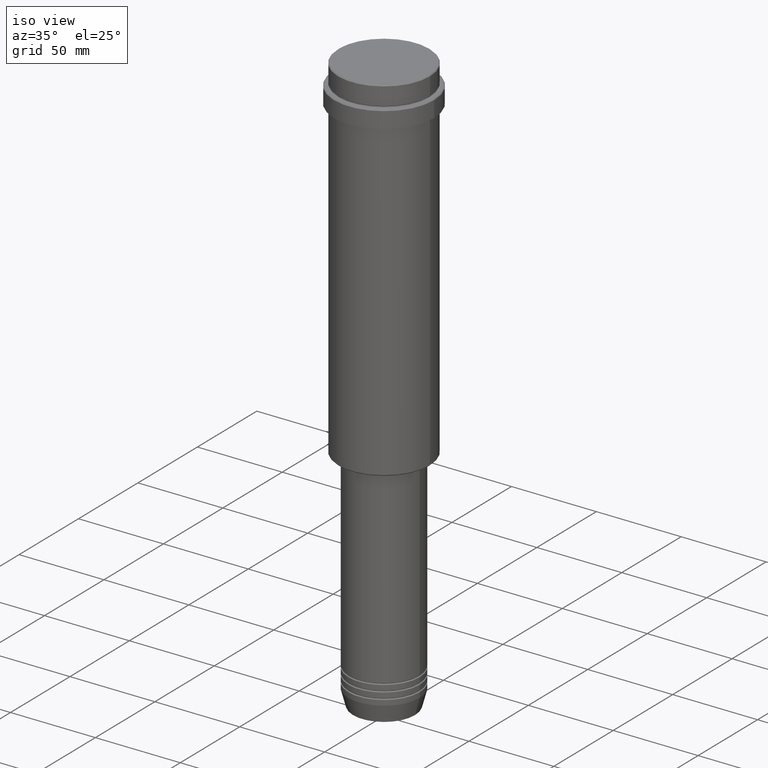
[diagram: clean part render]
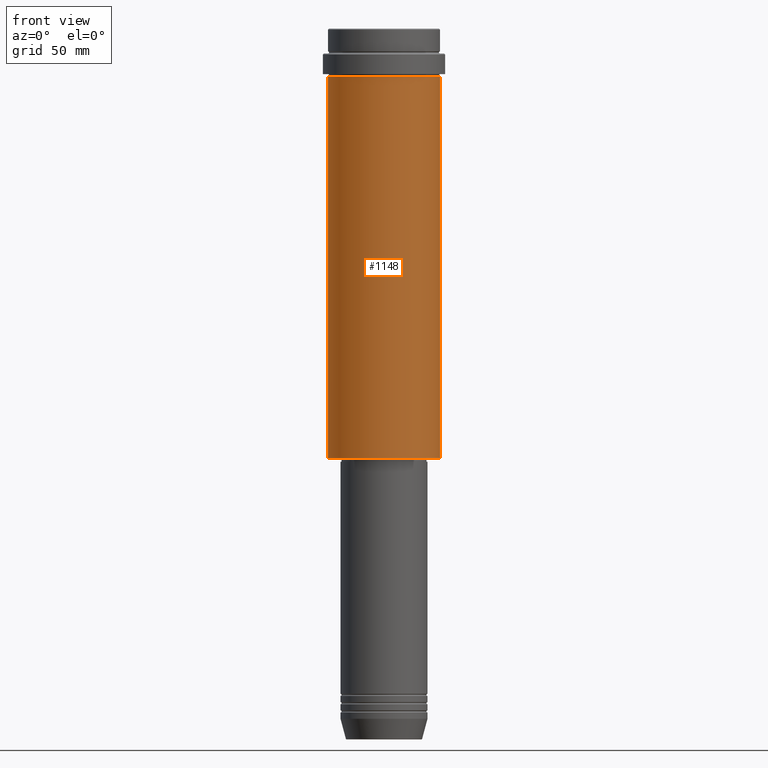
[diagram: tour spotlight — one face highlighted and labeled with its STEP entity id]
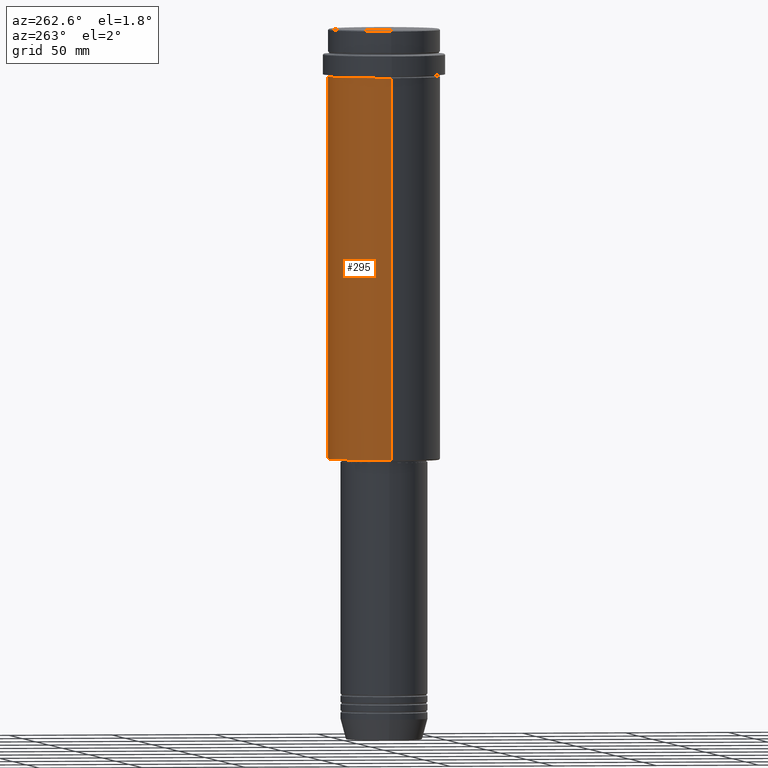
[diagram: tour spotlight — one face highlighted and labeled with its STEP entity id]
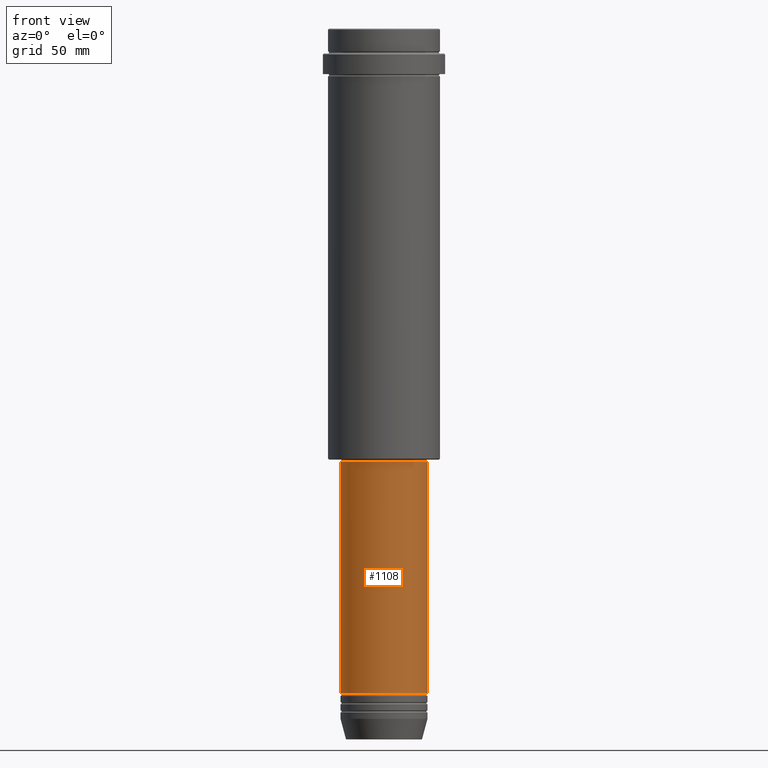
[diagram: tour spotlight — one face highlighted and labeled with its STEP entity id]
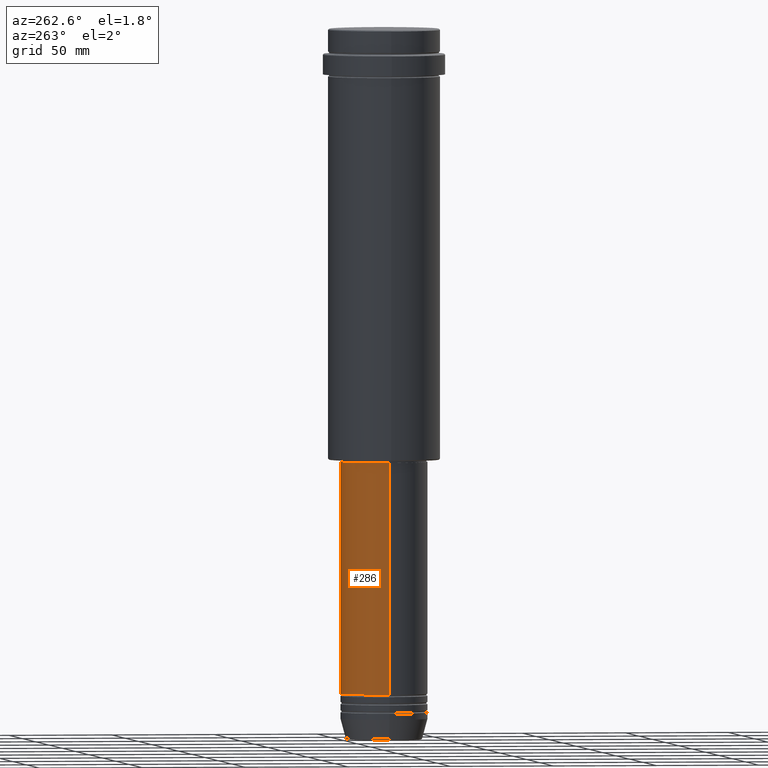
[diagram: tour spotlight — one face highlighted and labeled with its STEP entity id]
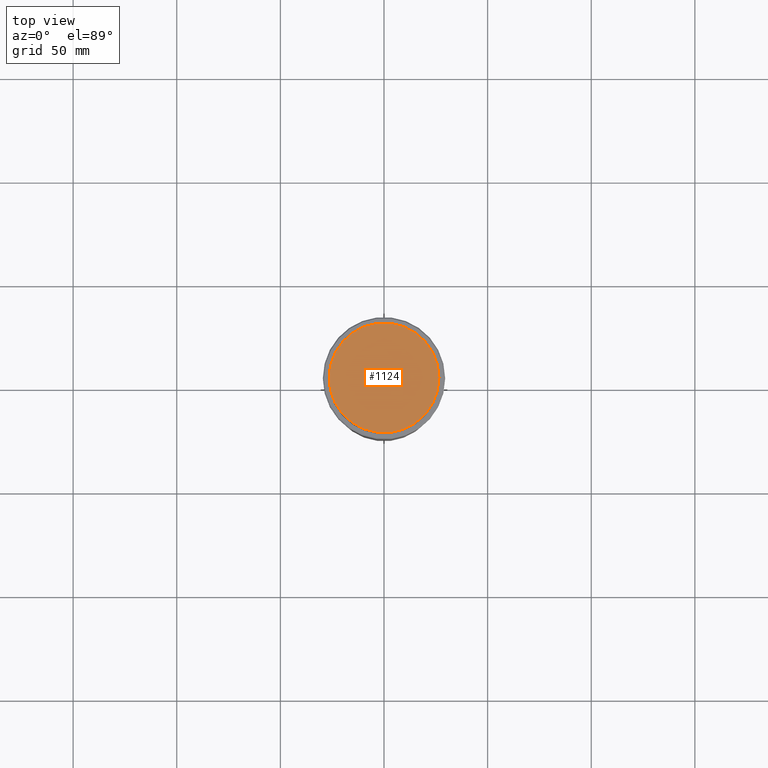
[diagram: tour spotlight — one face highlighted and labeled with its STEP entity id]
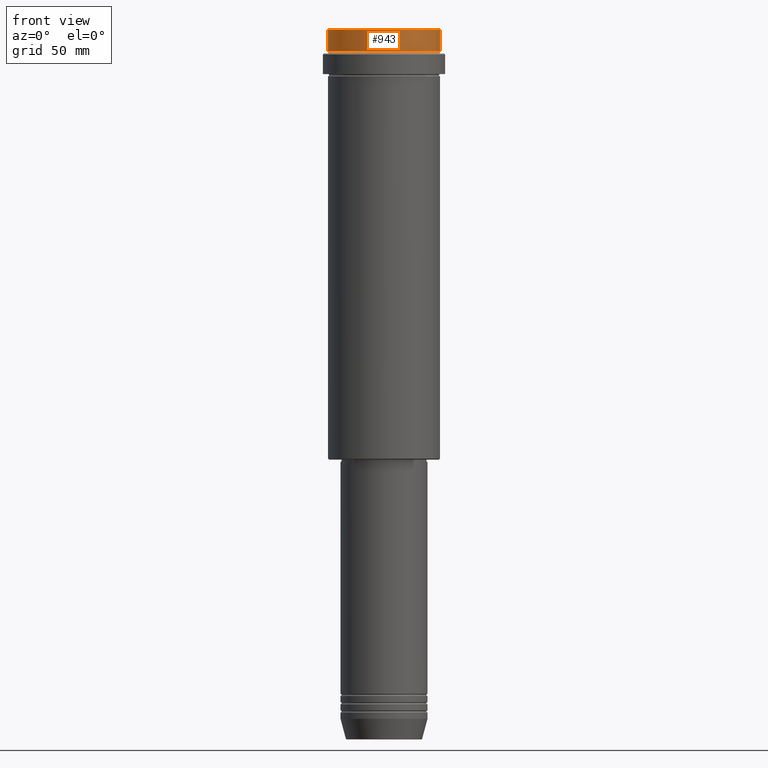
[diagram: tour spotlight — one face highlighted and labeled with its STEP entity id]
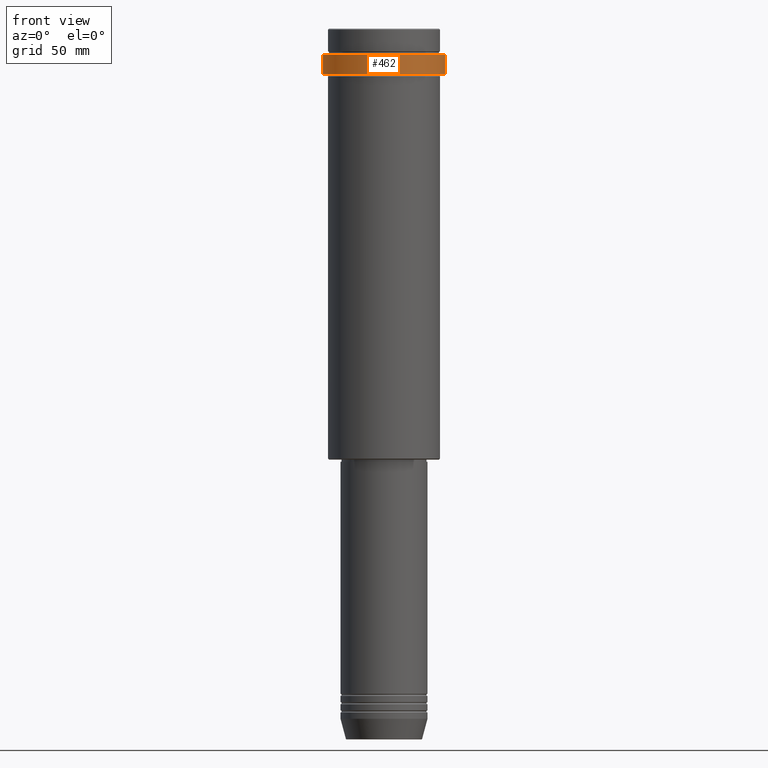
[diagram: tour spotlight — one face highlighted and labeled with its STEP entity id]
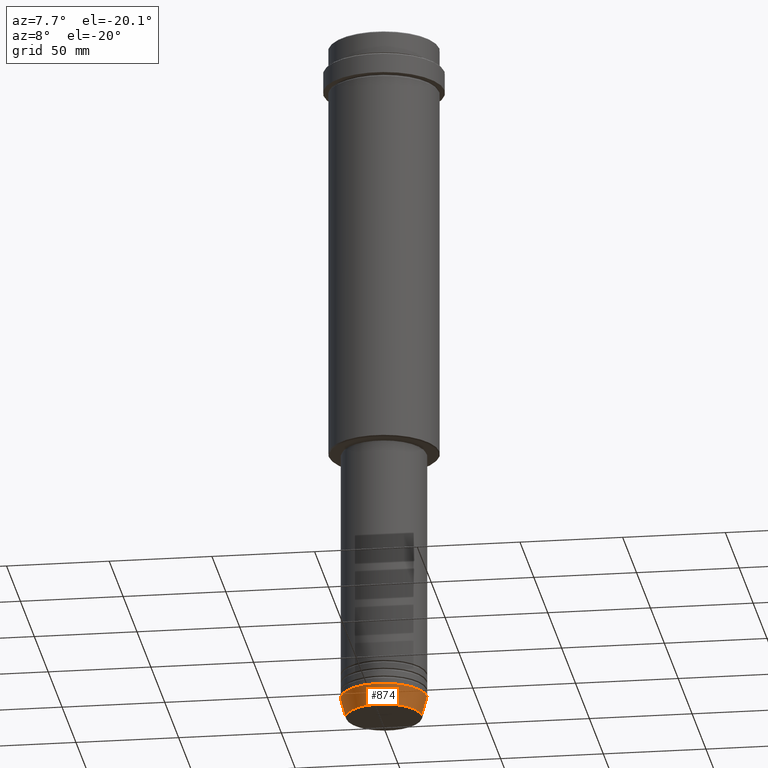
[diagram: tour spotlight — one face highlighted and labeled with its STEP entity id]
A machine part: a face-by-face anatomy tour. The part has 52 B-rep faces; the first image is the clean iso view, then the 8 largest visible faces are spotlighted one at a time (largest first), each with its STEP entity span.

Face 1 — front view, entity #1148. In plain terms, the highlighted cylindrical surface (partial cylindrical patch) has radius 27 mm, axis along (-0, -0, 1).
Definition (entity closure, byte-faithful):
#1 = AXIS2_PLACEMENT_3D ( 'NONE', #787, #1128, #1230 ) ;
#35 = CARTESIAN_POINT ( 'NONE',  ( 27.00000000000000355, 0.000000000000000000, -207.5000000000000284 ) ) ;
#70 = EDGE_CURVE ( 'NONE', #728, #665, #734, .T. ) ;
#184 = CARTESIAN_POINT ( 'NONE',  ( -27.00000000000000355, 3.306546357697854128E-15, 0.000000000000000000 ) ) ;
#257 = ORIENTED_EDGE ( 'NONE', *, *, #926, .F. ) ;
#304 = VERTEX_POINT ( 'NONE', #35 ) ;
#320 = CYLINDRICAL_SURFACE ( 'NONE', #847, 27.00000000000000355 ) ;
#356 = EDGE_CURVE ( 'NONE', #304, #905, #1149, .T. ) ;
#428 = ORIENTED_EDGE ( 'NONE', *, *, #70, .F. ) ;
#473 = ORIENTED_EDGE ( 'NONE', *, *, #356, .T. ) ;
#587 = DIRECTION ( 'NONE',  ( -0.000000000000000000, -0.000000000000000000, 1.000000000000000000 ) ) ;
#640 = DIRECTION ( 'NONE',  ( 1.000000000000000000, 0.000000000000000000, 0.000000000000000000 ) ) ;
#665 = VERTEX_POINT ( 'NONE', #878 ) ;
#728 = VERTEX_POINT ( 'NONE', #1090 ) ;
#734 = LINE ( 'NONE', #184, #956 ) ;
#745 = CARTESIAN_POINT ( 'NONE',  ( 0.000000000000000000, 0.000000000000000000, 0.000000000000000000 ) ) ;
#787 = CARTESIAN_POINT ( 'NONE',  ( 0.000000000000000000, 0.000000000000000000, -207.5000000000000284 ) ) ;
#810 = CARTESIAN_POINT ( 'NONE',  ( 27.00000000000000355, 0.000000000000000000, -23.00000000000001421 ) ) ;
#847 = AXIS2_PLACEMENT_3D ( 'NONE', #745, #1190, #640 ) ;
#856 = VECTOR ( 'NONE', #587, 1000.000000000000000 ) ;
#878 = CARTESIAN_POINT ( 'NONE',  ( -27.00000000000000355, 3.306546357697854128E-15, -23.00000000000001421 ) ) ;
#905 = VERTEX_POINT ( 'NONE', #810 ) ;
#926 = EDGE_CURVE ( 'NONE', #665, #905, #1315, .T. ) ;
#956 = VECTOR ( 'NONE', #1183, 1000.000000000000000 ) ;
#964 = EDGE_LOOP ( 'NONE', ( #428, #1377, #473, #257 ) ) ;
#1071 = CIRCLE ( 'NONE', #1, 27.00000000000000355 ) ;
#1090 = CARTESIAN_POINT ( 'NONE',  ( -27.00000000000000355, 3.306546357697854128E-15, -207.5000000000000284 ) ) ;
#1128 = DIRECTION ( 'NONE',  ( -0.000000000000000000, -0.000000000000000000, 1.000000000000000000 ) ) ;
#1143 = CARTESIAN_POINT ( 'NONE',  ( 27.00000000000000355, 0.000000000000000000, 0.000000000000000000 ) ) ;
#1148 = ADVANCED_FACE ( 'NONE', ( #1410 ), #320, .T. ) ;
#1149 = LINE ( 'NONE', #1143, #856 ) ;
#1159 = DIRECTION ( 'NONE',  ( -0.000000000000000000, -0.000000000000000000, 1.000000000000000000 ) ) ;
#1183 = DIRECTION ( 'NONE',  ( -0.000000000000000000, -0.000000000000000000, 1.000000000000000000 ) ) ;
#1190 = DIRECTION ( 'NONE',  ( -0.000000000000000000, -0.000000000000000000, 1.000000000000000000 ) ) ;
#1208 = AXIS2_PLACEMENT_3D ( 'NONE', #1253, #1159, #1235 ) ;
#1213 = EDGE_CURVE ( 'NONE', #728, #304, #1071, .T. ) ;
#1230 = DIRECTION ( 'NONE',  ( -1.000000000000000000, 0.000000000000000000, 0.000000000000000000 ) ) ;
#1235 = DIRECTION ( 'NONE',  ( 1.000000000000000000, 0.000000000000000000, 0.000000000000000000 ) ) ;
#1253 = CARTESIAN_POINT ( 'NONE',  ( 0.000000000000000000, 0.000000000000000000, -23.00000000000001421 ) ) ;
#1315 = CIRCLE ( 'NONE', #1208, 27.00000000000000355 ) ;
#1377 = ORIENTED_EDGE ( 'NONE', *, *, #1213, .T. ) ;
#1410 = FACE_OUTER_BOUND ( 'NONE', #964, .T. ) ;

Face 2 — auxiliary view, entity #295. In plain terms, the highlighted cylindrical surface (partial cylindrical patch) has radius 27 mm, axis along (-0, -0, 1).
Definition (entity closure, byte-faithful):
#35 = CARTESIAN_POINT ( 'NONE',  ( 27.00000000000000355, 0.000000000000000000, -207.5000000000000284 ) ) ;
#66 = EDGE_LOOP ( 'NONE', ( #744, #1365, #524, #1352 ) ) ;
#70 = EDGE_CURVE ( 'NONE', #728, #665, #734, .T. ) ;
#184 = CARTESIAN_POINT ( 'NONE',  ( -27.00000000000000355, 3.306546357697854128E-15, 0.000000000000000000 ) ) ;
#271 = CARTESIAN_POINT ( 'NONE',  ( 0.000000000000000000, 0.000000000000000000, 0.000000000000000000 ) ) ;
#294 = CARTESIAN_POINT ( 'NONE',  ( 0.000000000000000000, 0.000000000000000000, -207.5000000000000284 ) ) ;
#295 = ADVANCED_FACE ( 'NONE', ( #566 ), #1364, .T. ) ;
#298 = AXIS2_PLACEMENT_3D ( 'NONE', #294, #933, #839 ) ;
#304 = VERTEX_POINT ( 'NONE', #35 ) ;
#317 = AXIS2_PLACEMENT_3D ( 'NONE', #1278, #623, #1072 ) ;
#356 = EDGE_CURVE ( 'NONE', #304, #905, #1149, .T. ) ;
#457 = EDGE_CURVE ( 'NONE', #905, #665, #1409, .T. ) ;
#524 = ORIENTED_EDGE ( 'NONE', *, *, #457, .F. ) ;
#566 = FACE_OUTER_BOUND ( 'NONE', #66, .T. ) ;
#587 = DIRECTION ( 'NONE',  ( -0.000000000000000000, -0.000000000000000000, 1.000000000000000000 ) ) ;
#623 = DIRECTION ( 'NONE',  ( -0.000000000000000000, -0.000000000000000000, 1.000000000000000000 ) ) ;
#665 = VERTEX_POINT ( 'NONE', #878 ) ;
#728 = VERTEX_POINT ( 'NONE', #1090 ) ;
#734 = LINE ( 'NONE', #184, #956 ) ;
#744 = ORIENTED_EDGE ( 'NONE', *, *, #1369, .T. ) ;
#799 = CIRCLE ( 'NONE', #298, 27.00000000000000355 ) ;
#810 = CARTESIAN_POINT ( 'NONE',  ( 27.00000000000000355, 0.000000000000000000, -23.00000000000001421 ) ) ;
#839 = DIRECTION ( 'NONE',  ( -1.000000000000000000, 0.000000000000000000, 0.000000000000000000 ) ) ;
#856 = VECTOR ( 'NONE', #587, 1000.000000000000000 ) ;
#878 = CARTESIAN_POINT ( 'NONE',  ( -27.00000000000000355, 3.306546357697854128E-15, -23.00000000000001421 ) ) ;
#887 = AXIS2_PLACEMENT_3D ( 'NONE', #271, #900, #1220 ) ;
#900 = DIRECTION ( 'NONE',  ( -0.000000000000000000, -0.000000000000000000, 1.000000000000000000 ) ) ;
#905 = VERTEX_POINT ( 'NONE', #810 ) ;
#933 = DIRECTION ( 'NONE',  ( -0.000000000000000000, -0.000000000000000000, 1.000000000000000000 ) ) ;
#956 = VECTOR ( 'NONE', #1183, 1000.000000000000000 ) ;
#1072 = DIRECTION ( 'NONE',  ( 1.000000000000000000, 0.000000000000000000, 0.000000000000000000 ) ) ;
#1090 = CARTESIAN_POINT ( 'NONE',  ( -27.00000000000000355, 3.306546357697854128E-15, -207.5000000000000284 ) ) ;
#1143 = CARTESIAN_POINT ( 'NONE',  ( 27.00000000000000355, 0.000000000000000000, 0.000000000000000000 ) ) ;
#1149 = LINE ( 'NONE', #1143, #856 ) ;
#1183 = DIRECTION ( 'NONE',  ( -0.000000000000000000, -0.000000000000000000, 1.000000000000000000 ) ) ;
#1220 = DIRECTION ( 'NONE',  ( 1.000000000000000000, 0.000000000000000000, 0.000000000000000000 ) ) ;
#1278 = CARTESIAN_POINT ( 'NONE',  ( 0.000000000000000000, 0.000000000000000000, -23.00000000000001421 ) ) ;
#1352 = ORIENTED_EDGE ( 'NONE', *, *, #356, .F. ) ;
#1364 = CYLINDRICAL_SURFACE ( 'NONE', #887, 27.00000000000000355 ) ;
#1365 = ORIENTED_EDGE ( 'NONE', *, *, #70, .T. ) ;
#1369 = EDGE_CURVE ( 'NONE', #304, #728, #799, .T. ) ;
#1409 = CIRCLE ( 'NONE', #317, 27.00000000000000355 ) ;

Face 3 — front view, entity #1108. In plain terms, the highlighted cylindrical surface (partial cylindrical patch) has radius 21 mm, axis along (-0, -0, 1).
Definition (entity closure, byte-faithful):
#18 = DIRECTION ( 'NONE',  ( -0.000000000000000000, -0.000000000000000000, 1.000000000000000000 ) ) ;
#63 = VERTEX_POINT ( 'NONE', #1172 ) ;
#76 = CARTESIAN_POINT ( 'NONE',  ( 21.00000000000000000, 0.000000000000000000, -320.9999999999998863 ) ) ;
#101 = ORIENTED_EDGE ( 'NONE', *, *, #1004, .F. ) ;
#115 = CARTESIAN_POINT ( 'NONE',  ( 0.000000000000000000, 0.000000000000000000, 0.000000000000000000 ) ) ;
#213 = EDGE_CURVE ( 'NONE', #909, #1414, #338, .T. ) ;
#233 = FACE_OUTER_BOUND ( 'NONE', #446, .T. ) ;
#239 = CARTESIAN_POINT ( 'NONE',  ( 0.000000000000000000, 0.000000000000000000, -208.9999999999999432 ) ) ;
#338 = CIRCLE ( 'NONE', #1244, 21.00000000000000000 ) ;
#348 = EDGE_CURVE ( 'NONE', #1373, #63, #1337, .T. ) ;
#381 = CARTESIAN_POINT ( 'NONE',  ( -21.00000000000000000, 2.571758278209441661E-15, -208.9999999999999432 ) ) ;
#436 = VECTOR ( 'NONE', #586, 1000.000000000000000 ) ;
#446 = EDGE_LOOP ( 'NONE', ( #101, #689, #1324, #488 ) ) ;
#464 = DIRECTION ( 'NONE',  ( 1.000000000000000000, 0.000000000000000000, 0.000000000000000000 ) ) ;
#488 = ORIENTED_EDGE ( 'NONE', *, *, #348, .F. ) ;
#498 = AXIS2_PLACEMENT_3D ( 'NONE', #239, #18, #464 ) ;
#586 = DIRECTION ( 'NONE',  ( -0.000000000000000000, -0.000000000000000000, 1.000000000000000000 ) ) ;
#590 = CARTESIAN_POINT ( 'NONE',  ( -21.00000000000000000, 2.571758278209441661E-15, -320.9999999999998863 ) ) ;
#645 = DIRECTION ( 'NONE',  ( -0.000000000000000000, -0.000000000000000000, 1.000000000000000000 ) ) ;
#687 = LINE ( 'NONE', #1349, #436 ) ;
#689 = ORIENTED_EDGE ( 'NONE', *, *, #213, .T. ) ;
#691 = DIRECTION ( 'NONE',  ( -0.000000000000000000, -0.000000000000000000, 1.000000000000000000 ) ) ;
#699 = CARTESIAN_POINT ( 'NONE',  ( -21.00000000000000000, 2.571758278209441661E-15, 0.000000000000000000 ) ) ;
#755 = DIRECTION ( 'NONE',  ( -0.000000000000000000, -0.000000000000000000, 1.000000000000000000 ) ) ;
#827 = EDGE_CURVE ( 'NONE', #1414, #63, #687, .T. ) ;
#865 = CARTESIAN_POINT ( 'NONE',  ( 0.000000000000000000, 0.000000000000000000, -320.9999999999998863 ) ) ;
#890 = VECTOR ( 'NONE', #691, 1000.000000000000000 ) ;
#909 = VERTEX_POINT ( 'NONE', #590 ) ;
#924 = LINE ( 'NONE', #699, #890 ) ;
#1002 = DIRECTION ( 'NONE',  ( 1.000000000000000000, 0.000000000000000000, 0.000000000000000000 ) ) ;
#1004 = EDGE_CURVE ( 'NONE', #909, #1373, #924, .T. ) ;
#1108 = ADVANCED_FACE ( 'NONE', ( #233 ), #1109, .T. ) ;
#1109 = CYLINDRICAL_SURFACE ( 'NONE', #1179, 21.00000000000000000 ) ;
#1172 = CARTESIAN_POINT ( 'NONE',  ( 21.00000000000000000, 0.000000000000000000, -208.9999999999999432 ) ) ;
#1179 = AXIS2_PLACEMENT_3D ( 'NONE', #115, #645, #1002 ) ;
#1201 = DIRECTION ( 'NONE',  ( 1.000000000000000000, 0.000000000000000000, 0.000000000000000000 ) ) ;
#1244 = AXIS2_PLACEMENT_3D ( 'NONE', #865, #755, #1201 ) ;
#1324 = ORIENTED_EDGE ( 'NONE', *, *, #827, .T. ) ;
#1337 = CIRCLE ( 'NONE', #498, 21.00000000000000000 ) ;
#1349 = CARTESIAN_POINT ( 'NONE',  ( 21.00000000000000000, 0.000000000000000000, 0.000000000000000000 ) ) ;
#1373 = VERTEX_POINT ( 'NONE', #381 ) ;
#1414 = VERTEX_POINT ( 'NONE', #76 ) ;

Face 4 — auxiliary view, entity #286. In plain terms, the highlighted cylindrical surface (partial cylindrical patch) has radius 21 mm, axis along (-0, -0, 1).
Definition (entity closure, byte-faithful):
#63 = VERTEX_POINT ( 'NONE', #1172 ) ;
#76 = CARTESIAN_POINT ( 'NONE',  ( 21.00000000000000000, 0.000000000000000000, -320.9999999999998863 ) ) ;
#127 = DIRECTION ( 'NONE',  ( 1.000000000000000000, 0.000000000000000000, 0.000000000000000000 ) ) ;
#141 = CYLINDRICAL_SURFACE ( 'NONE', #383, 21.00000000000000000 ) ;
#269 = AXIS2_PLACEMENT_3D ( 'NONE', #1200, #576, #1355 ) ;
#286 = ADVANCED_FACE ( 'NONE', ( #669 ), #141, .T. ) ;
#319 = ORIENTED_EDGE ( 'NONE', *, *, #827, .F. ) ;
#370 = DIRECTION ( 'NONE',  ( -0.000000000000000000, -0.000000000000000000, 1.000000000000000000 ) ) ;
#381 = CARTESIAN_POINT ( 'NONE',  ( -21.00000000000000000, 2.571758278209441661E-15, -208.9999999999999432 ) ) ;
#383 = AXIS2_PLACEMENT_3D ( 'NONE', #797, #370, #127 ) ;
#436 = VECTOR ( 'NONE', #586, 1000.000000000000000 ) ;
#507 = AXIS2_PLACEMENT_3D ( 'NONE', #1178, #957, #707 ) ;
#545 = EDGE_LOOP ( 'NONE', ( #1287, #1154, #842, #319 ) ) ;
#576 = DIRECTION ( 'NONE',  ( -0.000000000000000000, -0.000000000000000000, 1.000000000000000000 ) ) ;
#586 = DIRECTION ( 'NONE',  ( -0.000000000000000000, -0.000000000000000000, 1.000000000000000000 ) ) ;
#590 = CARTESIAN_POINT ( 'NONE',  ( -21.00000000000000000, 2.571758278209441661E-15, -320.9999999999998863 ) ) ;
#669 = FACE_OUTER_BOUND ( 'NONE', #545, .T. ) ;
#687 = LINE ( 'NONE', #1349, #436 ) ;
#691 = DIRECTION ( 'NONE',  ( -0.000000000000000000, -0.000000000000000000, 1.000000000000000000 ) ) ;
#699 = CARTESIAN_POINT ( 'NONE',  ( -21.00000000000000000, 2.571758278209441661E-15, 0.000000000000000000 ) ) ;
#707 = DIRECTION ( 'NONE',  ( 1.000000000000000000, 0.000000000000000000, 0.000000000000000000 ) ) ;
#749 = EDGE_CURVE ( 'NONE', #63, #1373, #1166, .T. ) ;
#797 = CARTESIAN_POINT ( 'NONE',  ( 0.000000000000000000, 0.000000000000000000, 0.000000000000000000 ) ) ;
#827 = EDGE_CURVE ( 'NONE', #1414, #63, #687, .T. ) ;
#842 = ORIENTED_EDGE ( 'NONE', *, *, #749, .F. ) ;
#890 = VECTOR ( 'NONE', #691, 1000.000000000000000 ) ;
#909 = VERTEX_POINT ( 'NONE', #590 ) ;
#924 = LINE ( 'NONE', #699, #890 ) ;
#957 = DIRECTION ( 'NONE',  ( -0.000000000000000000, -0.000000000000000000, 1.000000000000000000 ) ) ;
#1004 = EDGE_CURVE ( 'NONE', #909, #1373, #924, .T. ) ;
#1039 = CIRCLE ( 'NONE', #507, 21.00000000000000000 ) ;
#1154 = ORIENTED_EDGE ( 'NONE', *, *, #1004, .T. ) ;
#1166 = CIRCLE ( 'NONE', #269, 21.00000000000000000 ) ;
#1172 = CARTESIAN_POINT ( 'NONE',  ( 21.00000000000000000, 0.000000000000000000, -208.9999999999999432 ) ) ;
#1178 = CARTESIAN_POINT ( 'NONE',  ( 0.000000000000000000, 0.000000000000000000, -320.9999999999998863 ) ) ;
#1200 = CARTESIAN_POINT ( 'NONE',  ( 0.000000000000000000, 0.000000000000000000, -208.9999999999999432 ) ) ;
#1287 = ORIENTED_EDGE ( 'NONE', *, *, #1388, .T. ) ;
#1349 = CARTESIAN_POINT ( 'NONE',  ( 21.00000000000000000, 0.000000000000000000, 0.000000000000000000 ) ) ;
#1355 = DIRECTION ( 'NONE',  ( 1.000000000000000000, 0.000000000000000000, 0.000000000000000000 ) ) ;
#1373 = VERTEX_POINT ( 'NONE', #381 ) ;
#1388 = EDGE_CURVE ( 'NONE', #1414, #909, #1039, .T. ) ;
#1414 = VERTEX_POINT ( 'NONE', #76 ) ;

Face 5 — top view, entity #1124. In plain terms, the highlighted planar face has unit normal (0, -0, 1).
Definition (entity closure, byte-faithful):
#74 = AXIS2_PLACEMENT_3D ( 'NONE', #109, #1416, #1281 ) ;
#96 = CARTESIAN_POINT ( 'NONE',  ( 0.000000000000000000, 0.000000000000000000, 0.000000000000000000 ) ) ;
#109 = CARTESIAN_POINT ( 'NONE',  ( 0.000000000000000000, 0.000000000000000000, 0.000000000000000000 ) ) ;
#124 = AXIS2_PLACEMENT_3D ( 'NONE', #96, #869, #1297 ) ;
#201 = PLANE ( 'NONE',  #74 ) ;
#226 = DIRECTION ( 'NONE',  ( 1.000000000000000000, 0.000000000000000000, 0.000000000000000000 ) ) ;
#423 = AXIS2_PLACEMENT_3D ( 'NONE', #1206, #1096, #226 ) ;
#550 = ORIENTED_EDGE ( 'NONE', *, *, #1140, .T. ) ;
#652 = EDGE_LOOP ( 'NONE', ( #1144, #550 ) ) ;
#725 = VERTEX_POINT ( 'NONE', #977 ) ;
#731 = EDGE_CURVE ( 'NONE', #725, #1164, #1289, .T. ) ;
#805 = CARTESIAN_POINT ( 'NONE',  ( 26.50000000000007816, 3.275930187719175074E-15, 0.000000000000000000 ) ) ;
#848 = FACE_OUTER_BOUND ( 'NONE', #652, .T. ) ;
#869 = DIRECTION ( 'NONE',  ( -0.000000000000000000, -0.000000000000000000, 1.000000000000000000 ) ) ;
#977 = CARTESIAN_POINT ( 'NONE',  ( -26.50000000000007816, 0.000000000000000000, 0.000000000000000000 ) ) ;
#1096 = DIRECTION ( 'NONE',  ( -0.000000000000000000, -0.000000000000000000, 1.000000000000000000 ) ) ;
#1124 = ADVANCED_FACE ( 'NONE', ( #848 ), #201, .T. ) ;
#1140 = EDGE_CURVE ( 'NONE', #1164, #725, #1158, .T. ) ;
#1144 = ORIENTED_EDGE ( 'NONE', *, *, #731, .T. ) ;
#1158 = CIRCLE ( 'NONE', #423, 26.50000000000007816 ) ;
#1164 = VERTEX_POINT ( 'NONE', #805 ) ;
#1206 = CARTESIAN_POINT ( 'NONE',  ( 0.000000000000000000, 0.000000000000000000, 0.000000000000000000 ) ) ;
#1281 = DIRECTION ( 'NONE',  ( 1.000000000000000000, 0.000000000000000000, 0.000000000000000000 ) ) ;
#1289 = CIRCLE ( 'NONE', #124, 26.50000000000007816 ) ;
#1297 = DIRECTION ( 'NONE',  ( 1.000000000000000000, 0.000000000000000000, 0.000000000000000000 ) ) ;
#1416 = DIRECTION ( 'NONE',  ( 0.000000000000000000, -0.000000000000000000, 1.000000000000000000 ) ) ;

Face 6 — front view, entity #943. In plain terms, the highlighted cylindrical surface (partial cylindrical patch) has radius 27 mm, axis along (-0, -0, 1).
Definition (entity closure, byte-faithful):
#8 = CARTESIAN_POINT ( 'NONE',  ( 27.00000000000000355, 0.000000000000000000, -0.4999999999999241163 ) ) ;
#28 = CARTESIAN_POINT ( 'NONE',  ( -27.00000000000000355, 3.306546357697854128E-15, -0.4999999999999241163 ) ) ;
#102 = VERTEX_POINT ( 'NONE', #1374 ) ;
#108 = ORIENTED_EDGE ( 'NONE', *, *, #1138, .T. ) ;
#112 = CARTESIAN_POINT ( 'NONE',  ( -27.00000000000000355, 3.306546357697854128E-15, 0.000000000000000000 ) ) ;
#125 = EDGE_CURVE ( 'NONE', #903, #1115, #895, .T. ) ;
#140 = EDGE_CURVE ( 'NONE', #102, #938, #1323, .T. ) ;
#143 = CARTESIAN_POINT ( 'NONE',  ( 0.000000000000000000, 0.000000000000000000, -11.00000000000000178 ) ) ;
#258 = CYLINDRICAL_SURFACE ( 'NONE', #585, 27.00000000000000355 ) ;
#336 = VECTOR ( 'NONE', #1412, 1000.000000000000000 ) ;
#350 = DIRECTION ( 'NONE',  ( -0.000000000000000000, -0.000000000000000000, 1.000000000000000000 ) ) ;
#373 = DIRECTION ( 'NONE',  ( 1.000000000000000000, 0.000000000000000000, 0.000000000000000000 ) ) ;
#377 = ORIENTED_EDGE ( 'NONE', *, *, #140, .F. ) ;
#429 = DIRECTION ( 'NONE',  ( 0.000000000000000000, 0.000000000000000000, -1.000000000000000000 ) ) ;
#448 = CARTESIAN_POINT ( 'NONE',  ( 0.000000000000000000, 0.000000000000000000, -0.4999999999999241163 ) ) ;
#452 = VECTOR ( 'NONE', #350, 1000.000000000000000 ) ;
#585 = AXIS2_PLACEMENT_3D ( 'NONE', #1368, #803, #1248 ) ;
#598 = CIRCLE ( 'NONE', #879, 27.00000000000000355 ) ;
#631 = ORIENTED_EDGE ( 'NONE', *, *, #125, .T. ) ;
#677 = CARTESIAN_POINT ( 'NONE',  ( 27.00000000000000355, 0.000000000000000000, -11.00000000000000178 ) ) ;
#685 = AXIS2_PLACEMENT_3D ( 'NONE', #448, #429, #1290 ) ;
#743 = ORIENTED_EDGE ( 'NONE', *, *, #1180, .T. ) ;
#777 = EDGE_LOOP ( 'NONE', ( #377, #743, #631, #108 ) ) ;
#803 = DIRECTION ( 'NONE',  ( -0.000000000000000000, -0.000000000000000000, 1.000000000000000000 ) ) ;
#879 = AXIS2_PLACEMENT_3D ( 'NONE', #143, #1023, #373 ) ;
#895 = LINE ( 'NONE', #986, #336 ) ;
#903 = VERTEX_POINT ( 'NONE', #677 ) ;
#938 = VERTEX_POINT ( 'NONE', #28 ) ;
#943 = ADVANCED_FACE ( 'NONE', ( #1145 ), #258, .T. ) ;
#986 = CARTESIAN_POINT ( 'NONE',  ( 27.00000000000000355, 0.000000000000000000, 0.000000000000000000 ) ) ;
#1023 = DIRECTION ( 'NONE',  ( -0.000000000000000000, -0.000000000000000000, 1.000000000000000000 ) ) ;
#1115 = VERTEX_POINT ( 'NONE', #8 ) ;
#1138 = EDGE_CURVE ( 'NONE', #1115, #938, #1327, .T. ) ;
#1145 = FACE_OUTER_BOUND ( 'NONE', #777, .T. ) ;
#1180 = EDGE_CURVE ( 'NONE', #102, #903, #598, .T. ) ;
#1248 = DIRECTION ( 'NONE',  ( 1.000000000000000000, 0.000000000000000000, 0.000000000000000000 ) ) ;
#1290 = DIRECTION ( 'NONE',  ( 1.000000000000000000, 0.000000000000000000, 0.000000000000000000 ) ) ;
#1323 = LINE ( 'NONE', #112, #452 ) ;
#1327 = CIRCLE ( 'NONE', #685, 27.00000000000000355 ) ;
#1368 = CARTESIAN_POINT ( 'NONE',  ( 0.000000000000000000, 0.000000000000000000, 0.000000000000000000 ) ) ;
#1374 = CARTESIAN_POINT ( 'NONE',  ( -27.00000000000000355, 3.306546357697854128E-15, -11.00000000000000178 ) ) ;
#1412 = DIRECTION ( 'NONE',  ( -0.000000000000000000, -0.000000000000000000, 1.000000000000000000 ) ) ;

Face 7 — front view, entity #462. In plain terms, the highlighted cylindrical surface (partial cylindrical patch) has radius 29.5 mm, axis along (-0, -0, 1).
Definition (entity closure, byte-faithful):
#54 = FACE_OUTER_BOUND ( 'NONE', #106, .T. ) ;
#106 = EDGE_LOOP ( 'NONE', ( #1086, #242, #567, #552 ) ) ;
#149 = VERTEX_POINT ( 'NONE', #450 ) ;
#236 = VECTOR ( 'NONE', #996, 1000.000000000000000 ) ;
#237 = DIRECTION ( 'NONE',  ( -0.000000000000000000, -0.000000000000000000, 1.000000000000000000 ) ) ;
#242 = ORIENTED_EDGE ( 'NONE', *, *, #1194, .T. ) ;
#261 = CARTESIAN_POINT ( 'NONE',  ( -29.50000000000000000, 3.612708057484691604E-15, 0.000000000000000000 ) ) ;
#281 = CIRCLE ( 'NONE', #754, 29.50000000000000000 ) ;
#342 = CARTESIAN_POINT ( 'NONE',  ( 0.000000000000000000, 0.000000000000000000, -12.50000000000000355 ) ) ;
#362 = DIRECTION ( 'NONE',  ( 1.000000000000000000, 0.000000000000000000, 0.000000000000000000 ) ) ;
#450 = CARTESIAN_POINT ( 'NONE',  ( -29.50000000000000000, 3.612708057484691604E-15, -12.50000000000000355 ) ) ;
#462 = ADVANCED_FACE ( 'NONE', ( #54 ), #837, .T. ) ;
#479 = CARTESIAN_POINT ( 'NONE',  ( 29.50000000000000000, 0.000000000000000000, -12.50000000000000355 ) ) ;
#546 = DIRECTION ( 'NONE',  ( 1.000000000000000000, 0.000000000000000000, 0.000000000000000000 ) ) ;
#552 = ORIENTED_EDGE ( 'NONE', *, *, #1133, .T. ) ;
#567 = ORIENTED_EDGE ( 'NONE', *, *, #1059, .T. ) ;
#715 = AXIS2_PLACEMENT_3D ( 'NONE', #828, #1264, #1393 ) ;
#730 = AXIS2_PLACEMENT_3D ( 'NONE', #1032, #237, #362 ) ;
#754 = AXIS2_PLACEMENT_3D ( 'NONE', #342, #974, #546 ) ;
#759 = VERTEX_POINT ( 'NONE', #788 ) ;
#770 = CARTESIAN_POINT ( 'NONE',  ( 29.50000000000000000, 0.000000000000000000, 0.000000000000000000 ) ) ;
#788 = CARTESIAN_POINT ( 'NONE',  ( -29.49999999999999645, 3.612708057484690815E-15, -22.00000000000000711 ) ) ;
#806 = CARTESIAN_POINT ( 'NONE',  ( 29.49999999999999645, 0.000000000000000000, -22.00000000000000711 ) ) ;
#814 = EDGE_CURVE ( 'NONE', #759, #149, #916, .T. ) ;
#828 = CARTESIAN_POINT ( 'NONE',  ( 0.000000000000000000, 0.000000000000000000, 0.000000000000000000 ) ) ;
#837 = CYLINDRICAL_SURFACE ( 'NONE', #715, 29.50000000000000000 ) ;
#838 = VERTEX_POINT ( 'NONE', #806 ) ;
#867 = LINE ( 'NONE', #770, #236 ) ;
#916 = LINE ( 'NONE', #261, #1057 ) ;
#974 = DIRECTION ( 'NONE',  ( 0.000000000000000000, 0.000000000000000000, -1.000000000000000000 ) ) ;
#996 = DIRECTION ( 'NONE',  ( -0.000000000000000000, -0.000000000000000000, 1.000000000000000000 ) ) ;
#1032 = CARTESIAN_POINT ( 'NONE',  ( 0.000000000000000000, 0.000000000000000000, -22.00000000000000711 ) ) ;
#1057 = VECTOR ( 'NONE', #1130, 1000.000000000000000 ) ;
#1059 = EDGE_CURVE ( 'NONE', #838, #1272, #867, .T. ) ;
#1086 = ORIENTED_EDGE ( 'NONE', *, *, #814, .F. ) ;
#1130 = DIRECTION ( 'NONE',  ( -0.000000000000000000, -0.000000000000000000, 1.000000000000000000 ) ) ;
#1133 = EDGE_CURVE ( 'NONE', #1272, #149, #281, .T. ) ;
#1194 = EDGE_CURVE ( 'NONE', #759, #838, #1400, .T. ) ;
#1264 = DIRECTION ( 'NONE',  ( -0.000000000000000000, -0.000000000000000000, 1.000000000000000000 ) ) ;
#1272 = VERTEX_POINT ( 'NONE', #479 ) ;
#1393 = DIRECTION ( 'NONE',  ( 1.000000000000000000, 0.000000000000000000, 0.000000000000000000 ) ) ;
#1400 = CIRCLE ( 'NONE', #730, 29.49999999999999645 ) ;

Face 8 — auxiliary view, entity #874. In plain terms, the highlighted conical surface has half-angle 15 deg.
Definition (entity closure, byte-faithful):
#32 = CIRCLE ( 'NONE', #170, 21.00000000000000000 ) ;
#68 = FACE_OUTER_BOUND ( 'NONE', #241, .T. ) ;
#114 = VECTOR ( 'NONE', #252, 1000.000000000000114 ) ;
#137 = CARTESIAN_POINT ( 'NONE',  ( 18.41980749484383750, 0.000000000000000000, -342.6294095225512706 ) ) ;
#150 = CARTESIAN_POINT ( 'NONE',  ( 0.000000000000000000, 0.000000000000000000, -342.6294095225512706 ) ) ;
#164 = DIRECTION ( 'NONE',  ( -0.000000000000000000, -0.000000000000000000, 1.000000000000000000 ) ) ;
#169 = ORIENTED_EDGE ( 'NONE', *, *, #1217, .T. ) ;
#170 = AXIS2_PLACEMENT_3D ( 'NONE', #609, #164, #1171 ) ;
#173 = CIRCLE ( 'NONE', #224, 18.41980749484383750 ) ;
#216 = CARTESIAN_POINT ( 'NONE',  ( -21.00000000000000000, 2.571758278209441661E-15, -333.0000000000000000 ) ) ;
#224 = AXIS2_PLACEMENT_3D ( 'NONE', #150, #367, #1127 ) ;
#241 = EDGE_LOOP ( 'NONE', ( #593, #1199, #169, #579 ) ) ;
#252 = DIRECTION ( 'NONE',  ( 0.2588190451025211836, 0.000000000000000000, 0.9659258262890680902 ) ) ;
#265 = CARTESIAN_POINT ( 'NONE',  ( 21.00000000000000000, 0.000000000000000000, -333.0000000000000000 ) ) ;
#272 = CARTESIAN_POINT ( 'NONE',  ( -21.00000000000000000, 2.571758278209441661E-15, -333.0000000000000000 ) ) ;
#292 = AXIS2_PLACEMENT_3D ( 'NONE', #514, #1380, #403 ) ;
#367 = DIRECTION ( 'NONE',  ( -0.000000000000000000, -0.000000000000000000, 1.000000000000000000 ) ) ;
#403 = DIRECTION ( 'NONE',  ( 1.000000000000000000, 0.000000000000000000, 0.000000000000000000 ) ) ;
#440 = EDGE_CURVE ( 'NONE', #945, #523, #32, .T. ) ;
#485 = LINE ( 'NONE', #265, #114 ) ;
#514 = CARTESIAN_POINT ( 'NONE',  ( 0.000000000000000000, 0.000000000000000000, -333.0000000000000000 ) ) ;
#523 = VERTEX_POINT ( 'NONE', #968 ) ;
#579 = ORIENTED_EDGE ( 'NONE', *, *, #440, .F. ) ;
#589 = EDGE_CURVE ( 'NONE', #670, #945, #1191, .T. ) ;
#593 = ORIENTED_EDGE ( 'NONE', *, *, #589, .F. ) ;
#607 = VECTOR ( 'NONE', #647, 1000.000000000000114 ) ;
#609 = CARTESIAN_POINT ( 'NONE',  ( 0.000000000000000000, 0.000000000000000000, -333.0000000000000000 ) ) ;
#647 = DIRECTION ( 'NONE',  ( -0.2588190451025211836, 3.169619151431770488E-17, 0.9659258262890680902 ) ) ;
#670 = VERTEX_POINT ( 'NONE', #747 ) ;
#747 = CARTESIAN_POINT ( 'NONE',  ( -18.41980749484383750, 2.413767053578267458E-15, -342.6294095225512706 ) ) ;
#874 = ADVANCED_FACE ( 'NONE', ( #68 ), #961, .T. ) ;
#899 = EDGE_CURVE ( 'NONE', #670, #1222, #173, .T. ) ;
#945 = VERTEX_POINT ( 'NONE', #272 ) ;
#961 = CONICAL_SURFACE ( 'NONE', #292, 21.00000000000000000, 0.2617993877991499074 ) ;
#968 = CARTESIAN_POINT ( 'NONE',  ( 21.00000000000000000, 0.000000000000000000, -333.0000000000000000 ) ) ;
#1127 = DIRECTION ( 'NONE',  ( 1.000000000000000000, 0.000000000000000000, 0.000000000000000000 ) ) ;
#1171 = DIRECTION ( 'NONE',  ( 1.000000000000000000, 0.000000000000000000, 0.000000000000000000 ) ) ;
#1191 = LINE ( 'NONE', #216, #607 ) ;
#1199 = ORIENTED_EDGE ( 'NONE', *, *, #899, .T. ) ;
#1217 = EDGE_CURVE ( 'NONE', #1222, #523, #485, .T. ) ;
#1222 = VERTEX_POINT ( 'NONE', #137 ) ;
#1380 = DIRECTION ( 'NONE',  ( -0.000000000000000000, -0.000000000000000000, 1.000000000000000000 ) ) ;